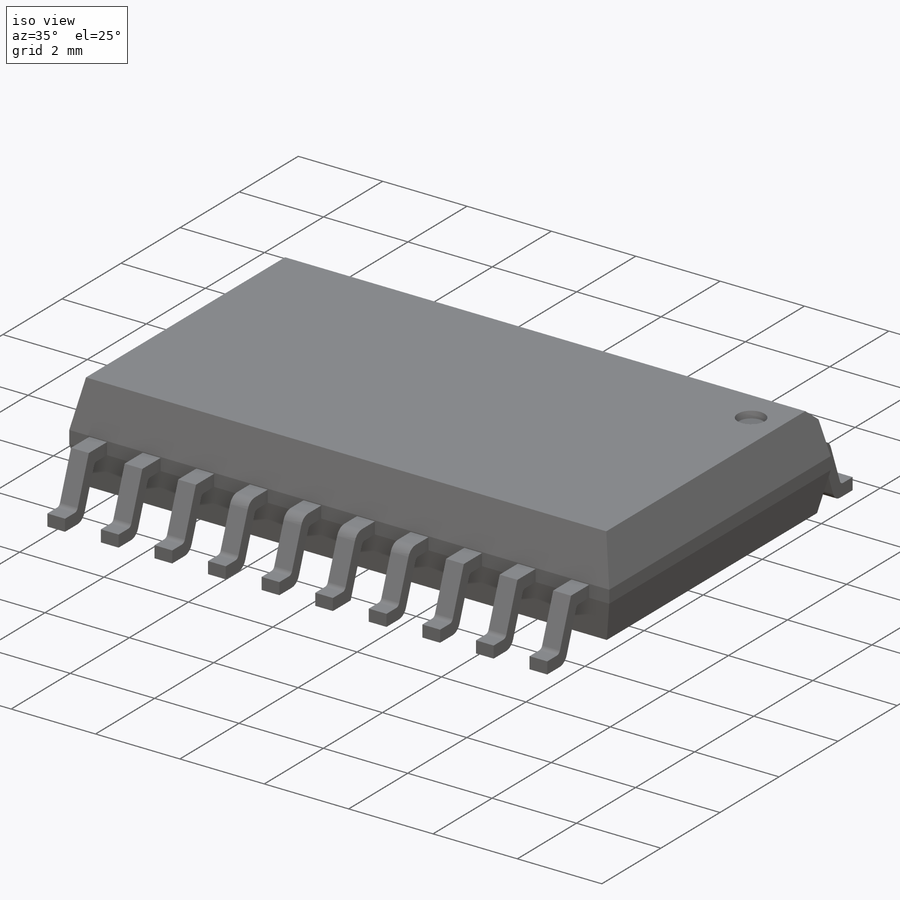
[diagram: iso view]
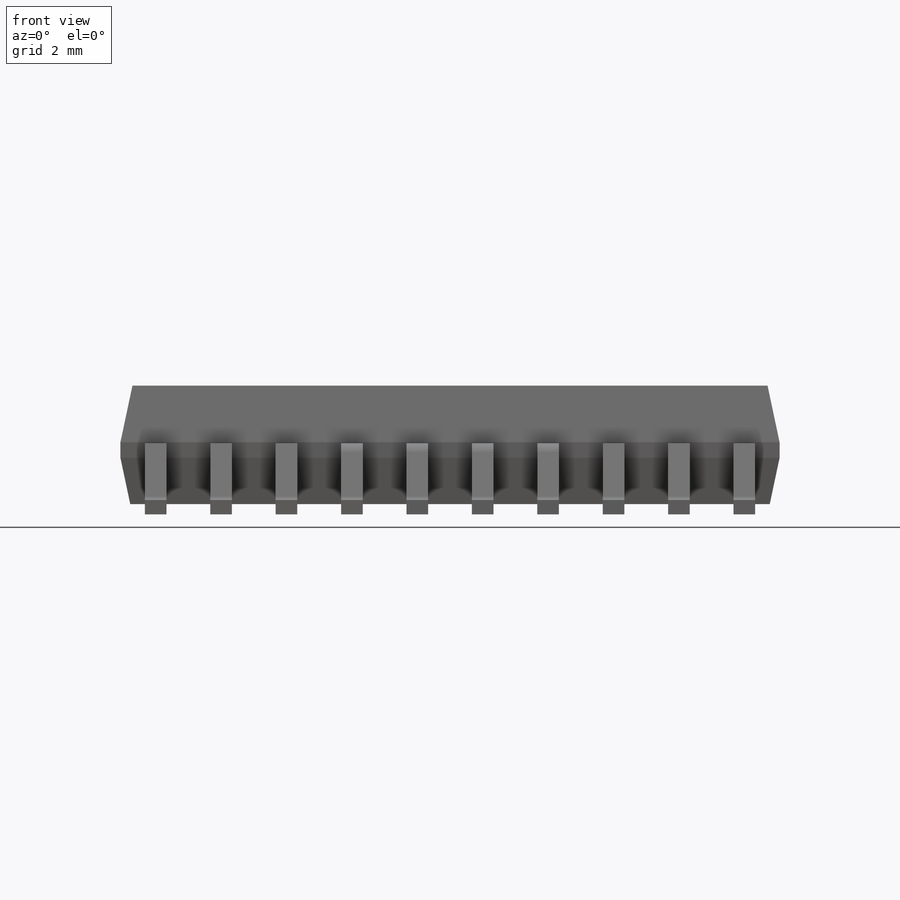
[diagram: front view]
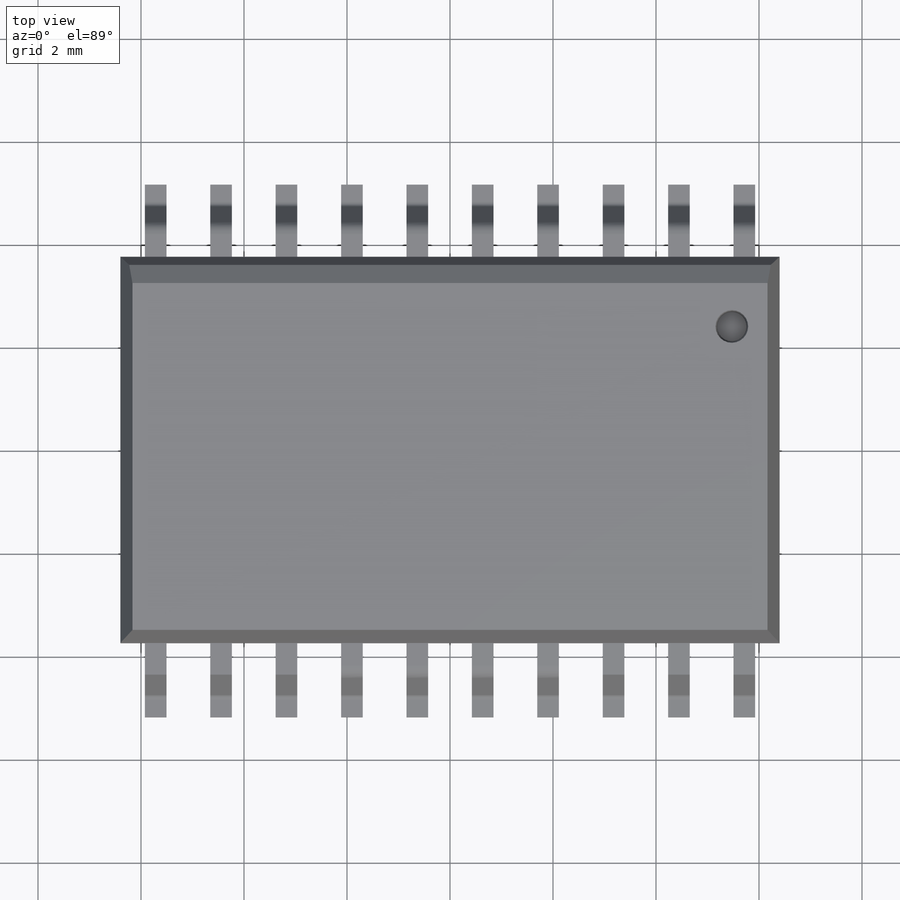
[diagram: top view]
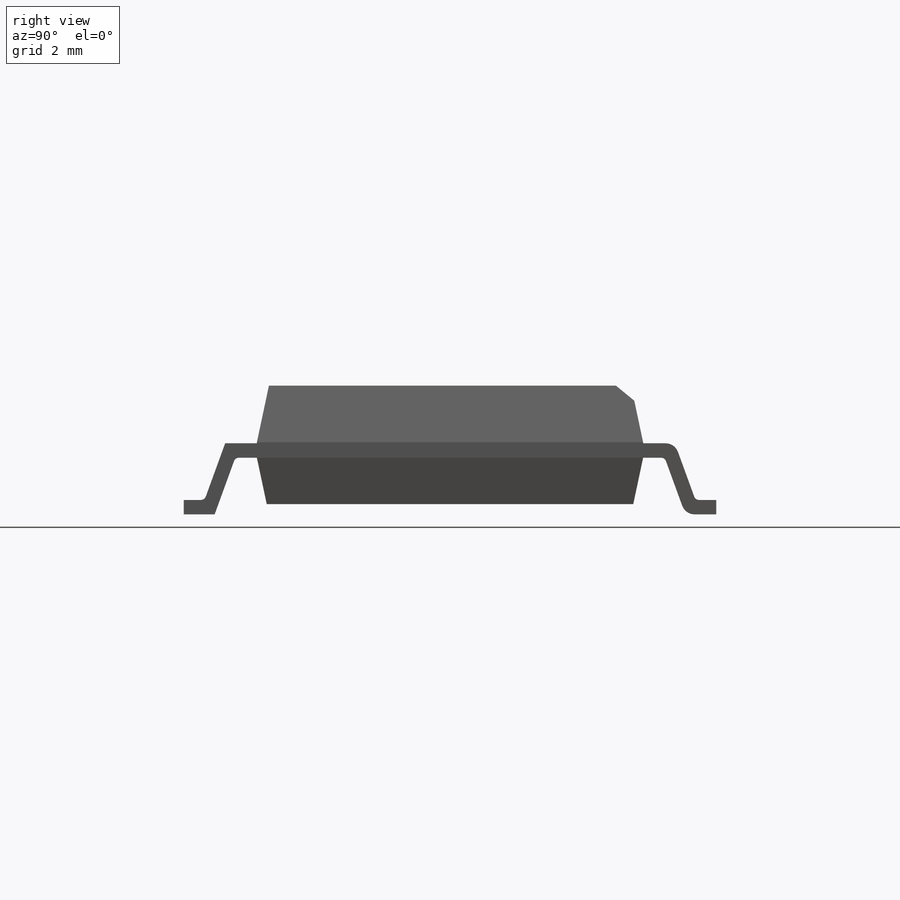
[diagram: right view]
SOLIDWORKS PART (.sldprt)
format: sldprt  version: not decoded by parser v0  size: 754,176 bytes
history: native  units: mm
features: sketch x5, extrude x3, fillet x2, material x1, chamfer x1, cut_extrude x1, pattern_linear x1, plane x1 (+12 scaffold rows collapsed)
feature tree (27):
  scaffold x12  (default folders/planes/origin — collapsed)
  material  "Material <not specified>"
  sketch  "Sketch1"  dims[D1=12.8mm D2=7.5mm D3=6.4mm D4=3.75mm]
  extrude  "Extrude1"  Depth=1.1mm
  sketch  "Sketch2"  dims[D1=0.0mm]
  extrude  "Extrude2"  Depth=0.9mm
  chamfer  "Chamfer1"  Distance=0.3mm Angle=38.5deg
  sketch  "Sketch3"
  cut_extrude  "Cut-Extrude1"  Depth=0.15mm
  sketch  "Sketch4"  dims[c1.D1=0.84mm c1.D2=5.99mm c1.D3=2.995mm c1.D4=0.18mm c1.D5=0.23mm c1.D6=98.0deg c2.D6=0.23mm c3.D6=98.0deg c4.D6=0.23mm c4.D1=0.28mm c4.D2=0.28mm c4.D3=0.28mm c4.D4=0.6mm c4.D5=10.34mm c5.D6=~0.715361mm c6.D6=110.0deg c6.D7=0.2mm]
  extrude  "Extrude3"  Depth=0.21mm
  pattern_linear  "LPattern3"  Count1=5 Count2=6 Spacing1=1.27mm Spacing2=1.27mm
  fillet  "Fillet1"  Radius=0.1mm
  fillet  "Fillet2"  Radius=0.25mm
  plane  "Plane1"  Offset=1.4mm
  sketch  "Component_Outline"
decode coverage: 11 of 13 modeling features carry decoded parameters
note: ~ marks probable driven/reference dimensions
note: suppression state not decoded; provenance and decode notes live in map.json
